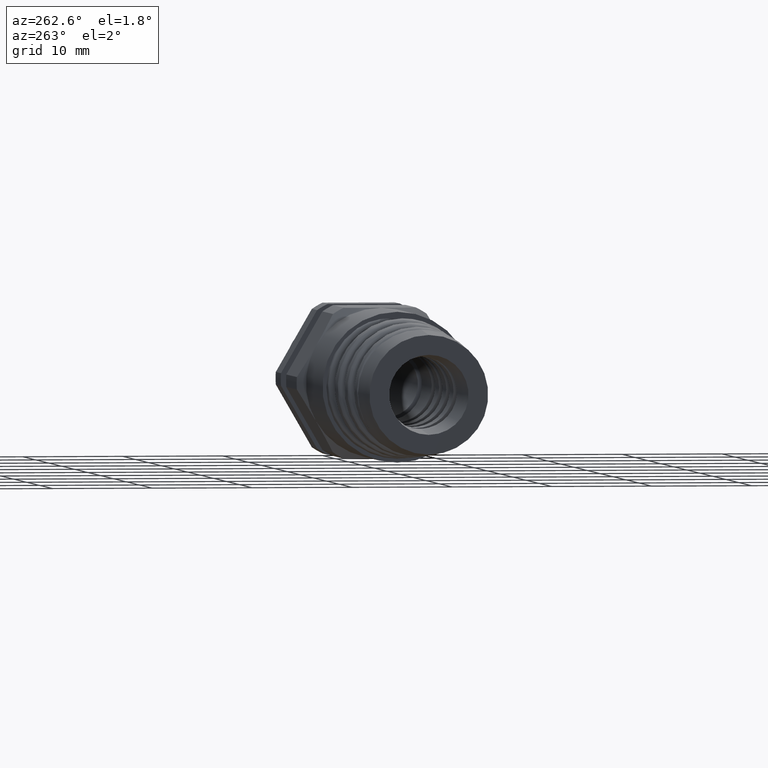
[diagram: clean part render]
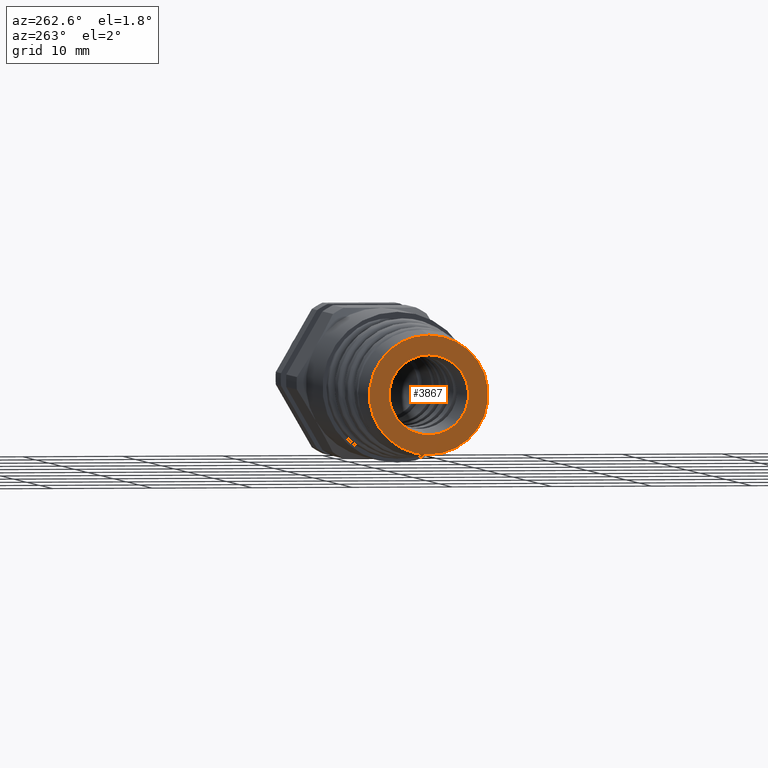
[diagram: same view with one face highlighted and labeled with its STEP entity id]
A machine part, auxiliary view. The second image highlights one B-rep face of the part: STEP entity #3867.
In plain terms, the highlighted planar face has unit normal (-1, 0, 0).
Its self-contained STEP definition (entity closure, byte-faithful):
#122 = DIRECTION ( 'NONE',  ( 0.0000000000000000000, 0.0000000000000000000, 1.000000000000000000 ) ) ;
#123 = DIRECTION ( 'NONE',  ( -1.000000000000000000, 0.0000000000000000000, 0.0000000000000000000 ) ) ;
#124 = AXIS2_PLACEMENT_3D ( 'NONE', #362, #123, #122 ) ;
#125 = CIRCLE ( 'NONE', #124, 0.1565692987783991500 ) ;
#165 = DIRECTION ( 'NONE',  ( -1.000000000000000000, 0.0000000000000000000, 0.0000000000000000000 ) ) ;
#166 = CARTESIAN_POINT ( 'NONE',  ( -2.439999999999999900, 0.0000000000000000000, 0.0000000000000000000 ) ) ;
#167 = AXIS2_PLACEMENT_3D ( 'NONE', #166, #165, #367 ) ;
#168 = PLANE ( 'NONE',  #167 ) ;
#169 = CARTESIAN_POINT ( 'NONE',  ( -2.439999999999999900, 0.0000000000000000000, 0.0000000000000000000 ) ) ;
#170 = FACE_BOUND ( 'NONE', #3872, .T. ) ;
#171 = FACE_OUTER_BOUND ( 'NONE', #3868, .T. ) ;
#362 = CARTESIAN_POINT ( 'NONE',  ( -2.439999999999999900, 0.0000000000000000000, 0.0000000000000000000 ) ) ;
#363 = DIRECTION ( 'NONE',  ( 0.0000000000000000000, 0.0000000000000000000, 1.000000000000000000 ) ) ;
#364 = DIRECTION ( 'NONE',  ( -1.000000000000000000, 0.0000000000000000000, 0.0000000000000000000 ) ) ;
#365 = AXIS2_PLACEMENT_3D ( 'NONE', #169, #364, #363 ) ;
#366 = CIRCLE ( 'NONE', #365, 0.2341065197523261300 ) ;
#367 = DIRECTION ( 'NONE',  ( 0.0000000000000000000, 0.0000000000000000000, 1.000000000000000000 ) ) ;
#3867 = ADVANCED_FACE ( 'NONE', ( #171, #170 ), #168, .T. ) ;
#3868 = EDGE_LOOP ( 'NONE', ( #3869, #3871 ) ) ;
#3869 = ORIENTED_EDGE ( 'NONE', *, *, #3870, .T. ) ;
#3870 = EDGE_CURVE ( 'NONE', #4283, #4402, #366, .T. ) ;
#3871 = ORIENTED_EDGE ( 'NONE', *, *, #4398, .T. ) ;
#3872 = EDGE_LOOP ( 'NONE', ( #3873, #3875 ) ) ;
#3873 = ORIENTED_EDGE ( 'NONE', *, *, #3874, .F. ) ;
#3874 = EDGE_CURVE ( 'NONE', #4265, #4264, #125, .T. ) ;
#3875 = ORIENTED_EDGE ( 'NONE', *, *, #4357, .F. ) ;
#4264 = VERTEX_POINT ( 'NONE', #5832 ) ;
#4265 = VERTEX_POINT ( 'NONE', #5831 ) ;
#4283 = VERTEX_POINT ( 'NONE', #5799 ) ;
#4357 = EDGE_CURVE ( 'NONE', #4264, #4265, #6001, .T. ) ;
#4398 = EDGE_CURVE ( 'NONE', #4402, #4283, #6415, .T. ) ;
#4402 = VERTEX_POINT ( 'NONE', #6367 ) ;
#5799 = CARTESIAN_POINT ( 'NONE',  ( -2.439999999999999900, 0.0000000000000000000, 0.2341065197523261300 ) ) ;
#5831 = CARTESIAN_POINT ( 'NONE',  ( -2.439999999999999900, 0.0000000000000000000, 0.1565692987783991500 ) ) ;
#5832 = CARTESIAN_POINT ( 'NONE',  ( -2.439999999999999900, 1.917420905937121000E-017, -0.1565692987783991500 ) ) ;
#5997 = DIRECTION ( 'NONE',  ( 0.0000000000000000000, 0.0000000000000000000, 1.000000000000000000 ) ) ;
#5998 = DIRECTION ( 'NONE',  ( -1.000000000000000000, 0.0000000000000000000, 0.0000000000000000000 ) ) ;
#5999 = CARTESIAN_POINT ( 'NONE',  ( -2.439999999999999900, 0.0000000000000000000, 0.0000000000000000000 ) ) ;
#6000 = AXIS2_PLACEMENT_3D ( 'NONE', #5999, #5998, #5997 ) ;
#6001 = CIRCLE ( 'NONE', #6000, 0.1565692987783991500 ) ;
#6367 = CARTESIAN_POINT ( 'NONE',  ( -2.439999999999999900, -2.955445646798926800E-017, -0.2341065197523261300 ) ) ;
#6379 = DIRECTION ( 'NONE',  ( 0.0000000000000000000, 0.0000000000000000000, 1.000000000000000000 ) ) ;
#6380 = DIRECTION ( 'NONE',  ( -1.000000000000000000, 0.0000000000000000000, 0.0000000000000000000 ) ) ;
#6381 = AXIS2_PLACEMENT_3D ( 'NONE', #6421, #6380, #6379 ) ;
#6415 = CIRCLE ( 'NONE', #6381, 0.2341065197523261300 ) ;
#6421 = CARTESIAN_POINT ( 'NONE',  ( -2.439999999999999900, 0.0000000000000000000, 0.0000000000000000000 ) ) ;